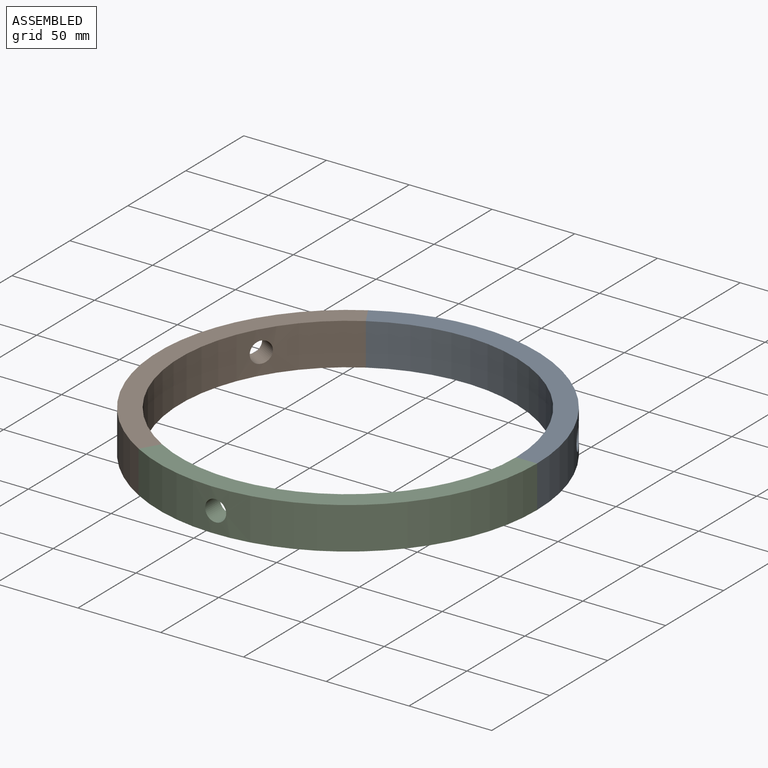
[diagram: assembled view]
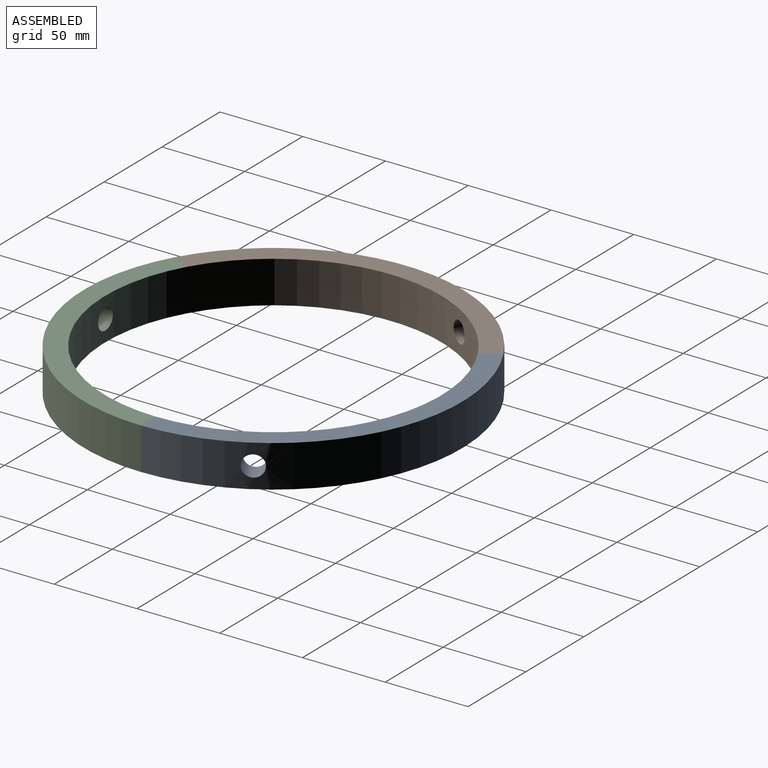
[diagram: assembled view, second angle]
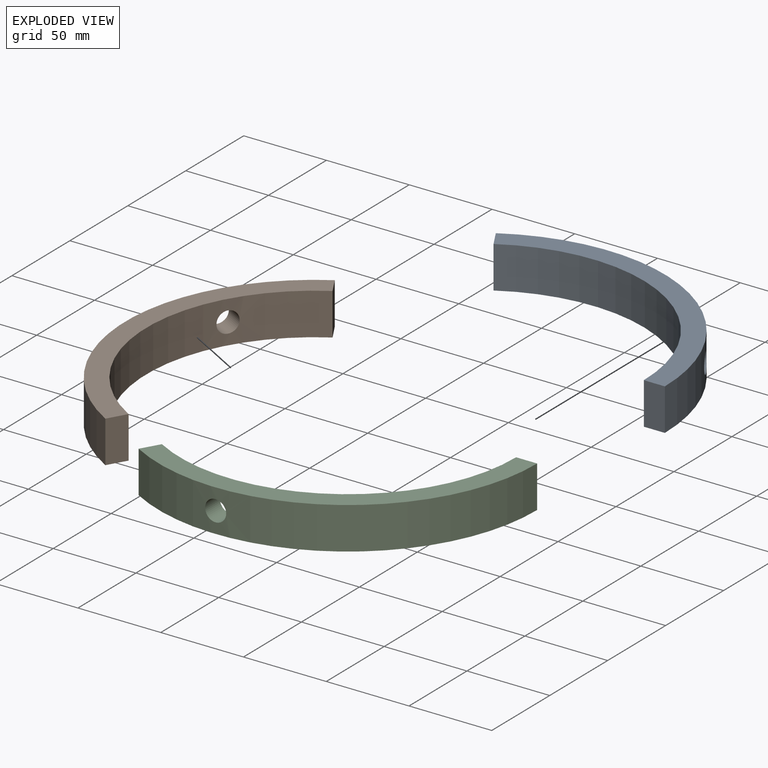
[diagram: exploded view]
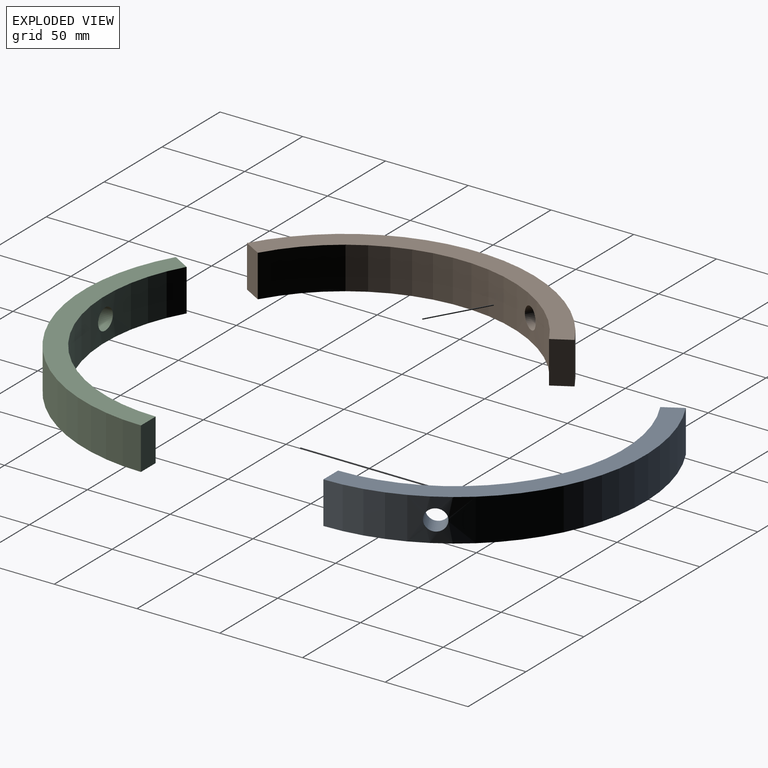
[diagram: exploded view, second angle]
ASSEMBLY  parts=3 mates=2
PART A: 7 faces, bbox 171.5x114.3x25.4 mm
  f0: cylinder r=101.6mm len=152.4mm, axis (0,0,-1), area 5278mm2, adj f2,f3,f4,f5,f6
  f1: cylinder r=114.3mm len=171.45mm, axis (0,0,-1), area 5953.7mm2, adj f2,f3,f4,f5,f6
  f2: plane 25.4x11mm, normal (-0.87,0.5,0), area 322.6mm2, adj f0,f1,f4,f5
  f3: plane 25.4x12.7mm, normal (0,1,0), area 322.6mm2, adj f0,f1,f4,f5
  f4: plane 171.45x114.3mm, normal (0,0,1), area 2871.3mm2, adj f0,f1,f2,f3
  f5: plane 171.45x114.3mm, normal (0,0,-1), area 2871.3mm2, adj f0,f1,f2,f3
  f6: cylinder r=6.35mm len=12.9mm, axis (0,1,0), area 507.1mm2, adj f0,f1
PART B: same geometry as A
PART C: same geometry as A
PLACE A rot(axis=(0,0,1),120deg) t=(-37.98,65.79,8.4)mm
PLACE B rot(axis=(0,0,-1),120deg) t=(-37.98,65.79,8.4)mm
PLACE C t=(-37.98,65.79,8.4)mm
MATE fastened B.f3 <-> C.f2  axis (0.87,-0.5,0) through (-91.96,-27.7,21.1)mm
MATE fastened A.f2 <-> C.f3  axis (0,-1,0) through (69.97,65.79,21.1)mm
